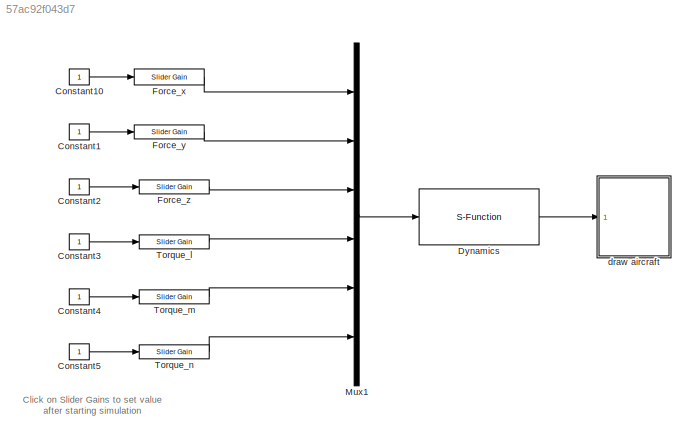
MODEL slx_57ac92f043d7
KIND model
CONFIG AbsTol = auto
CONFIG EnableMultiTasking = on
CONFIG FixedStep = auto
CONFIG InitFcn = addpath('../chap2')\naddpath('../parameters/')\naerosonde_parameters
CONFIG MaxStep = auto
CONFIG MinStep = auto
CONFIG RelTol = 1e-3
CONFIG SampleTimeConstraint = Unconstrained
CONFIG SolverName = ode45
CONFIG StartTime = 0.0
CONFIG StopTime = 10000
WORKSPACE source: MATLAB code (in-file)
WORKSPACE code: aerosonde_parameters
BLOCK [Constant] Constant1
BLOCK [Constant] Constant10
BLOCK [Constant] Constant2
BLOCK [Constant] Constant3
BLOCK [Constant] Constant4
BLOCK [Constant] Constant5
BLOCK [S-Function] Dynamics
  EnableBusSupport = off
  FunctionName = mav_dynamics
  InitFcn = % G = Jx*Jz - Jxz^2;\n% g1 = Jxz*(Jx - Jy + Jz)/G;\n% g2 = (Jz*(Jz - Jy) + Jxz^2)/G;\n% g3 = Jz/G;\n% g4 = Jxz/G;\n% g5 = (Jz - Jx)/Jy;\n% g6 = Jxz/Jy;\n% g7 = ((Jx - Jy)*Jx + Jxz^2)/G;\n% g8 = Jx/G;\n% \n% MAV.pn0 = 0;\n% MAV.pe0 = 0;\n% MAV.pd0 = 0;\n% MAV.u0 = 0;\n% MAV.v0 = 0;\n% MAV.w0 = 0;\n% MAV.e0 = 0;\n% MAV.e1 = 0;\n% MAV.e2 = 0;\n% MAV.p0 = 0;\n% MAV.q0 = 0;\n% MAV.r0 = 0;
  Parameters = MAV
  Ports = [1, 1]
  SFcnIsStateOwnerBlock = off
  SFunctionDeploymentMode = off
BLOCK [Reference] Force_x  REF=simulink/Math
Operations/Slider
Gain
  Ports = [1, 1]
  SourceBlock = simulink/Math\nOperations/Slider\nGain
  SourceProductBaseCode = SL
  SourceType = Slider Gain
BLOCK [Reference] Force_y  REF=simulink/Math
Operations/Slider
Gain
  Ports = [1, 1]
  SourceBlock = simulink/Math\nOperations/Slider\nGain
  SourceProductBaseCode = SL
  SourceType = Slider Gain
BLOCK [Reference] Force_z  REF=simulink/Math
Operations/Slider
Gain
  Ports = [1, 1]
  SourceBlock = simulink/Math\nOperations/Slider\nGain
  SourceProductBaseCode = SL
  SourceType = Slider Gain
BLOCK [Mux] Mux1
  DisplayOption = bar
  Inputs = 6
  Ports = [6, 1]
BLOCK [Reference] Torque_l  REF=simulink/Math
Operations/Slider
Gain
  Ports = [1, 1]
  SourceBlock = simulink/Math\nOperations/Slider\nGain
  SourceProductBaseCode = SL
  SourceType = Slider Gain
BLOCK [Reference] Torque_m  REF=simulink/Math
Operations/Slider
Gain
  Ports = [1, 1]
  SourceBlock = simulink/Math\nOperations/Slider\nGain
  SourceProductBaseCode = SL
  SourceType = Slider Gain
BLOCK [Reference] Torque_n   REF=simulink/Math
Operations/Slider
Gain
  Ports = [1, 1]
  SourceBlock = simulink/Math\nOperations/Slider\nGain
  SourceProductBaseCode = SL
  SourceType = Slider Gain
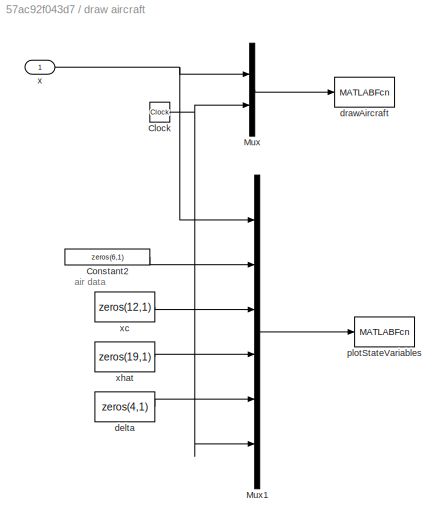
BLOCK [SubSystem] draw aircraft
  Ports = [1]
  RequestExecContextInheritance = off
BLOCK [Clock] draw aircraft/Clock
BLOCK [Constant] draw aircraft/Constant2
  Value = zeros(6,1)
BLOCK [Mux] draw aircraft/Mux
  DisplayOption = bar
  Inputs = 2
  Ports = [2, 1]
BLOCK [Mux] draw aircraft/Mux1
  DisplayOption = bar
  Inputs = 6
  Ports = [6, 1]
BLOCK [Constant] draw aircraft/delta
  Value = zeros(4,1)
BLOCK [MATLABFcn] draw aircraft/drawAircraft
  MATLABFcn = drawAircraft(u)
  OutputDimensions = 0
  Ports = [1]
  SampleTime = 0.1
BLOCK [MATLABFcn] draw aircraft/plotStateVariables
  MATLABFcn = plotMAVStateVariables(u)
  OutputDimensions = 0
  Ports = [1]
  SampleTime = 0.1
BLOCK [Inport] draw aircraft/x
BLOCK [Constant] draw aircraft/xc
  Value = zeros(12,1)
BLOCK [Constant] draw aircraft/xhat
  Value = zeros(19,1)
ANNOTATION (root): Click on Slider Gains to set value after starting simulation
ANNOTATION draw aircraft: air data
LINE Constant10:1 -> Force_x:1
LINE Constant1:1 -> Force_y:1
LINE Constant2:1 -> Force_z:1
LINE Constant3:1 -> Torque_l:1
LINE Constant4:1 -> Torque_m:1
LINE Constant5:1 -> Torque_n :1
LINE Dynamics:1 -> draw aircraft:1
LINE Force_x:1 -> Mux1:1
LINE Force_y:1 -> Mux1:2
LINE Force_z:1 -> Mux1:3
LINE Mux1:1 -> Dynamics:1
LINE Torque_l:1 -> Mux1:4
LINE Torque_m:1 -> Mux1:5
LINE Torque_n :1 -> Mux1:6
NET draw aircraft/Clock:1 -> draw aircraft/Mux1:6, draw aircraft/Mux:2
LINE draw aircraft/Constant2:1 -> draw aircraft/Mux1:2
LINE draw aircraft/Mux1:1 -> draw aircraft/plotStateVariables:1
LINE draw aircraft/Mux:1 -> draw aircraft/drawAircraft:1
LINE draw aircraft/delta:1 -> draw aircraft/Mux1:5
NET draw aircraft/x:1 -> draw aircraft/Mux1:1, draw aircraft/Mux:1
LINE draw aircraft/xc:1 -> draw aircraft/Mux1:3
LINE draw aircraft/xhat:1 -> draw aircraft/Mux1:4
note: NET lines group one-source signal fan-out (src -> all destinations, sorted); 1:1 wires keep LINE
